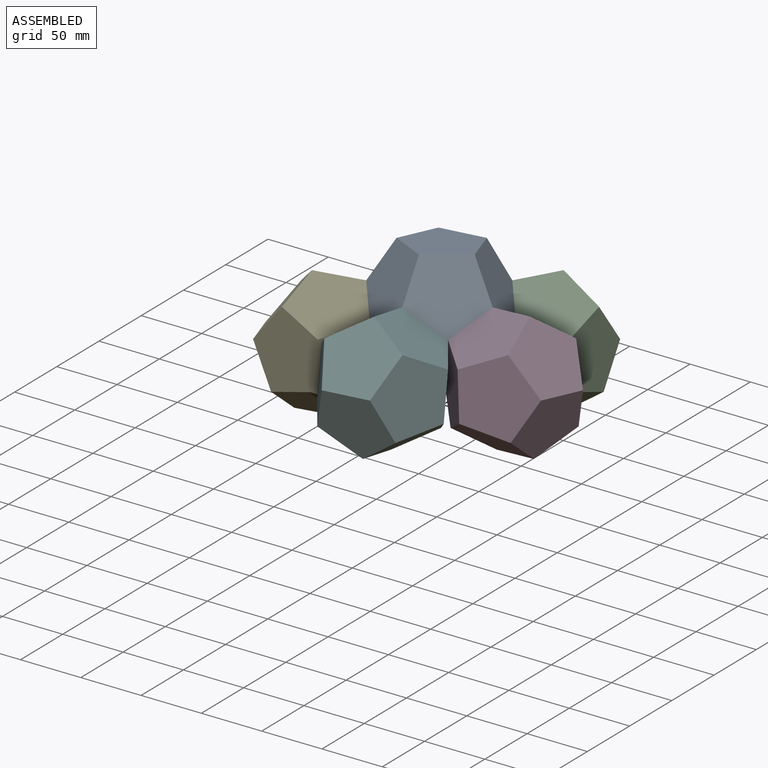
[diagram: assembled view]
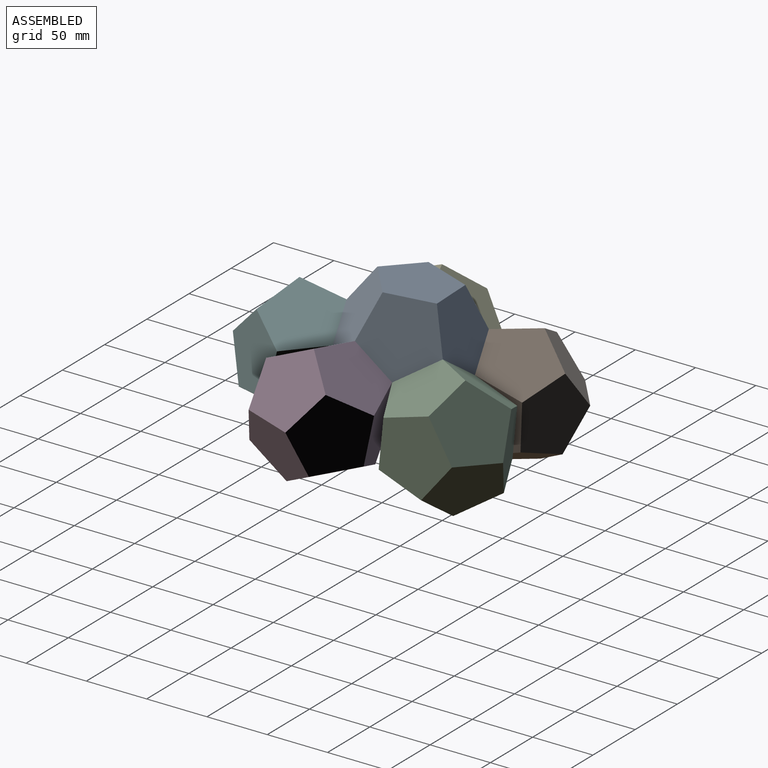
[diagram: assembled view, second angle]
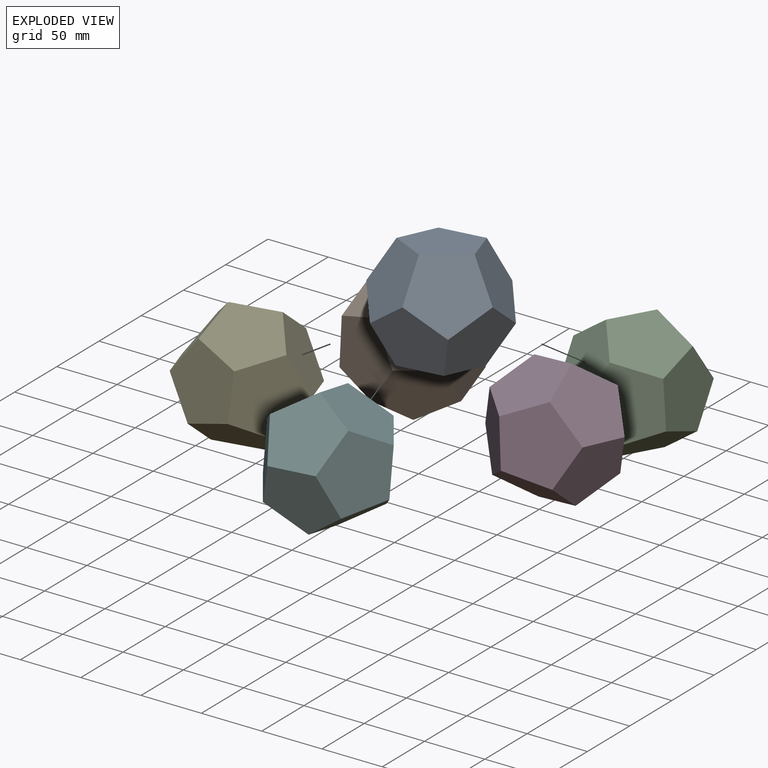
[diagram: exploded view]
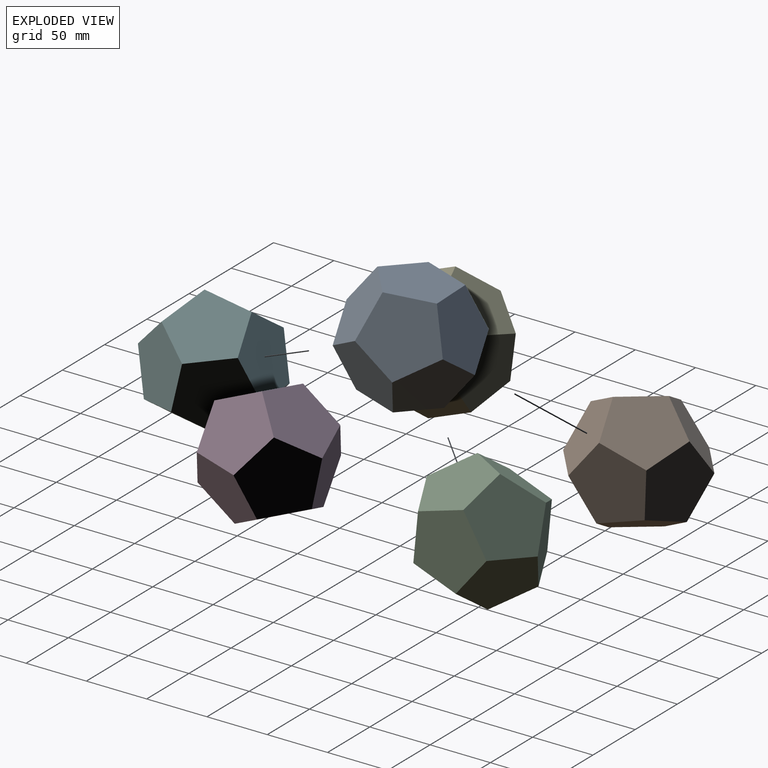
[diagram: exploded view, second angle]
ASSEMBLY  parts=6 mates=5
PART A: 12 faces, bbox 99.7x104.9x84.9 mm
  f0: plane 58.63x52.44mm, normal (-0.85,-0.28,-0.45), area 2497.5mm2, adj f1,f4,f5,f8,f9
  f1: plane 61.65x52.44mm, normal (0,-0.89,-0.45), area 2497.5mm2, adj f0,f2,f5,f9,f10
  f2: plane 58.63x52.44mm, normal (0.85,-0.28,-0.45), area 2497.5mm2, adj f1,f3,f5,f6,f10
  f3: plane 52.44x49.87mm, normal (0.53,0.72,-0.45), area 2497.5mm2, adj f2,f4,f5,f6,f7
  f4: plane 52.44x49.87mm, normal (-0.53,0.72,-0.45), area 2497.5mm2, adj f0,f3,f5,f7,f8
  f5: plane 61.65x58.63mm, normal (0,0,-1), area 2497.5mm2, adj f0,f1,f2,f3,f4
  f6: plane 58.63x52.44mm, normal (0.85,0.28,0.45), area 2497.5mm2, adj f2,f3,f7,f10,f11
  f7: plane 61.65x52.44mm, normal (0,0.89,0.45), area 2497.5mm2, adj f3,f4,f6,f8,f11
  f8: plane 58.63x52.44mm, normal (-0.85,0.28,0.45), area 2497.5mm2, adj f0,f4,f7,f9,f11
  f9: plane 52.44x49.87mm, normal (-0.53,-0.72,0.45), area 2497.5mm2, adj f0,f1,f8,f10,f11
  f10: plane 52.44x49.87mm, normal (0.53,-0.72,0.45), area 2497.5mm2, adj f1,f2,f6,f9,f11
  f11: plane 61.65x58.63mm, normal (0,0,1), area 2497.5mm2, adj f6,f7,f8,f9,f10
PART B: same geometry as A
PART C: same geometry as A
PART D: same geometry as A
PART E: same geometry as A
PART F: same geometry as A
PLACE A rot(axis=(-0.81,-0.26,0.53),8.3deg) t=(0.07,2.82,1.5)mm
PLACE B rot(axis=(-0.96,0,-0.28),98.1deg) t=(-62.21,20.33,-0.69)mm
PLACE C rot(axis=(0.51,0.72,-0.48),172.9deg) t=(56.53,99.35,22.83)mm
PLACE D rot(axis=(-0.94,-0.35,-0.03),99.8deg) t=(86.45,-53.97,18.31)mm
PLACE E rot(axis=(0.83,0.33,0.45),175.7deg) t=(-102.75,-35.55,31.76)mm
PLACE F rot(axis=(0.14,0.35,0.93),95.2deg) t=(-14.95,-80.92,-21.1)mm
MATE planar C.f9 <-> A.f3  axis (-0.49,-0.71,0.51) through (19.02,37.69,21.88)mm
MATE planar B.f2 <-> A.f4  axis (0.56,-0.62,0.55) through (-25.42,34.18,20.4)mm
MATE planar F.f6 <-> A.f1  axis (-0.09,0.94,0.34) through (1.9,-32.04,29.27)mm
MATE planar E.f6 <-> A.f0  axis (0.81,0.39,0.44) through (-36.01,-8.92,24.96)mm
MATE planar D.f9 <-> A.f2  axis (-0.89,0.26,0.38) through (35.91,-3.24,27.36)mm
